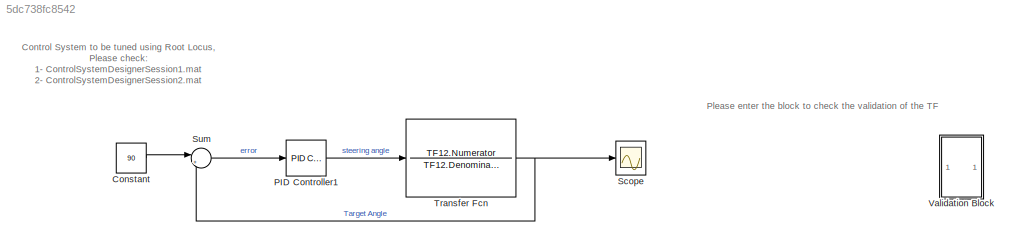
MODEL slx_5dc738fc8542
KIND model
CONFIG AbsTol = auto
CONFIG EnableMultiTasking = off
CONFIG FixedStep = auto
CONFIG MaxStep = 0.001
CONFIG MinStep = auto
CONFIG RelTol = 1e-3
CONFIG SampleTimeConstraint = Unconstrained
CONFIG Solver = VariableStepAuto
CONFIG SolverName = VariableStepAuto
CONFIG StartTime = 0.0
CONFIG StopTime = 5
BLOCK [Constant] Constant
  Value = 90
BLOCK [Reference] PID Controller1  REF=simulink/Continuous/PID Controller
  Ports = [1, 1]
  SourceBlock = simulink/Continuous/PID Controller
  SourceProductBaseCode = SL
  SourceProductName = Simulink
  SourceType = PID 1dof
BLOCK [Scope] Scope
  Floating = off
  NumInputPorts = 1
  Ports = [1]
  ScopeSpecificationString = Simulink.scopes.TimeScopeBlockCfg('CurrentConfiguration', extmgr.ConfigurationSet(extmgr.Configuration('Core','General UI',true),extmgr.Configuration('Core','Source UI',true),extmgr.Configuration('Sources','WiredSimulink',true),extmgr.Configuration('Visuals','Time Domain',true,'SerializedDisplays',{struct('MinYLimReal','25.73689','MaxYLimReal','104.23289','YLabelReal','','MinYLimMag','25.73689','M...<+1413ch>
BLOCK [Sum] Sum
  IconShape = round
  InputSameDT = off
  Inputs = |+-
  OutDataTypeStr = Inherit: Inherit via internal rule
  Ports = [2, 1]
  SaturateOnIntegerOverflow = off
BLOCK [TransferFcn] Transfer Fcn
  Denominator = TF12.Denominator
  Numerator = TF12.Numerator
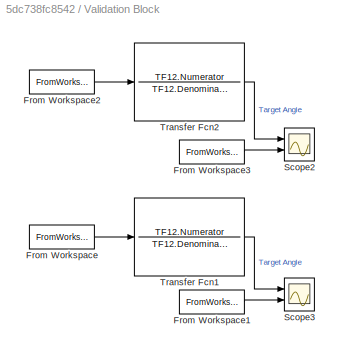
BLOCK [SubSystem] Validation Block
  Ports = []
  RequestExecContextInheritance = off
BLOCK [FromWorkspace] Validation Block/From Workspace
  SampleTime = 0
  VariableName = input3
  ZeroCross = on
BLOCK [FromWorkspace] Validation Block/From Workspace1
  SampleTime = 0
  VariableName = output3
  ZeroCross = on
BLOCK [FromWorkspace] Validation Block/From Workspace2
  SampleTime = 0
  VariableName = input2
  ZeroCross = on
BLOCK [FromWorkspace] Validation Block/From Workspace3
  SampleTime = 0
  VariableName = output2
  ZeroCross = on
BLOCK [Scope] Validation Block/Scope2 
  Floating = off
  NumInputPorts = 2
  Ports = [2]
  ScopeSpecificationString = Simulink.scopes.TimeScopeBlockCfg('CurrentConfiguration', extmgr.ConfigurationSet(extmgr.Configuration('Core','General UI',true),extmgr.Configuration('Core','Source UI',true),extmgr.Configuration('Sources','WiredSimulink',true,'DataLoggingVariableName','ScopeData2'),extmgr.Configuration('Visuals','Time Domain',true,'SerializedDisplays',{struct('MinYLimReal','-94.08502','MaxYLimReal','11.17056','YL...<+1424ch>
BLOCK [Scope] Validation Block/Scope3 
  Floating = off
  NumInputPorts = 2
  Ports = [2]
  ScopeSpecificationString = Simulink.scopes.TimeScopeBlockCfg('CurrentConfiguration', extmgr.ConfigurationSet(extmgr.Configuration('Core','General UI',true),extmgr.Configuration('Core','Source UI',true),extmgr.Configuration('Sources','WiredSimulink',true,'DataLoggingVariableName','ScopeData1'),extmgr.Configuration('Visuals','Time Domain',true,'SerializedDisplays',{struct('MinYLimReal','-91.47973','MaxYLimReal','10.92703','YL...<+1424ch>
BLOCK [TransferFcn] Validation Block/Transfer Fcn1
  Denominator = TF12.Denominator
  Numerator = TF12.Numerator
BLOCK [TransferFcn] Validation Block/Transfer Fcn2
  Denominator = TF12.Denominator
  Numerator = TF12.Numerator
ANNOTATION (root): Please enter the block to check the validation of the TF
ANNOTATION (root): Control System to be tuned using Root Locus, Please check: 1- ControlSystemDesignerSession1.mat 2- ControlSystemDesignerSession2.mat
LINE Constant:1 -> Sum:1
LINE PID Controller1:1 -> Transfer Fcn:1
LINE Sum:1 -> PID Controller1:1
NET Transfer Fcn:1 -> Scope:1, Sum:2
LINE Validation Block/From Workspace1:1 -> Validation Block/Scope3 :2
LINE Validation Block/From Workspace2:1 -> Validation Block/Transfer Fcn2:1
LINE Validation Block/From Workspace3:1 -> Validation Block/Scope2 :2
LINE Validation Block/From Workspace:1 -> Validation Block/Transfer Fcn1:1
LINE Validation Block/Transfer Fcn1:1 -> Validation Block/Scope3 :1
LINE Validation Block/Transfer Fcn2:1 -> Validation Block/Scope2 :1
note: NET lines group one-source signal fan-out (src -> all destinations, sorted); 1:1 wires keep LINE
